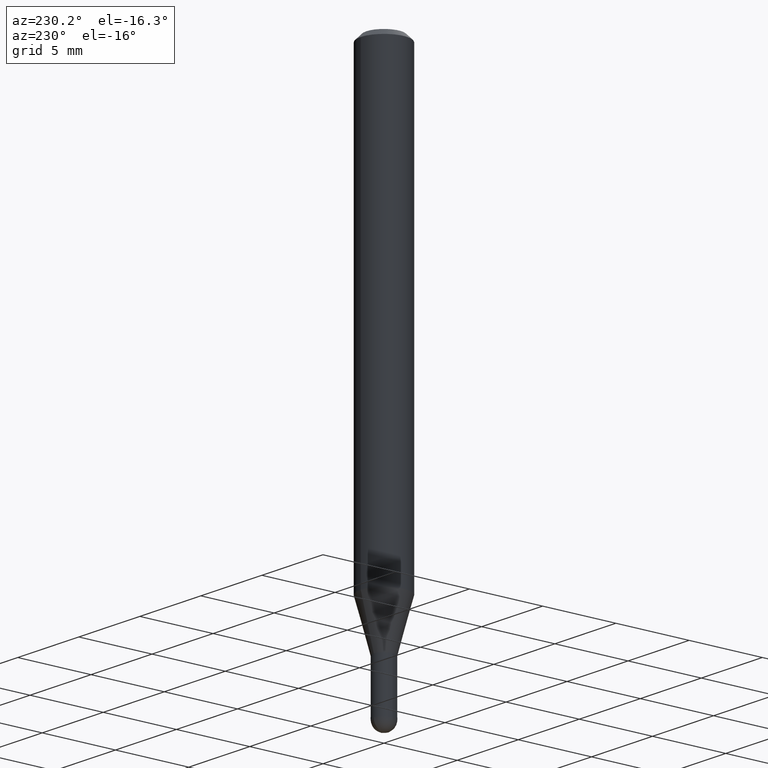
[diagram: clean part render]
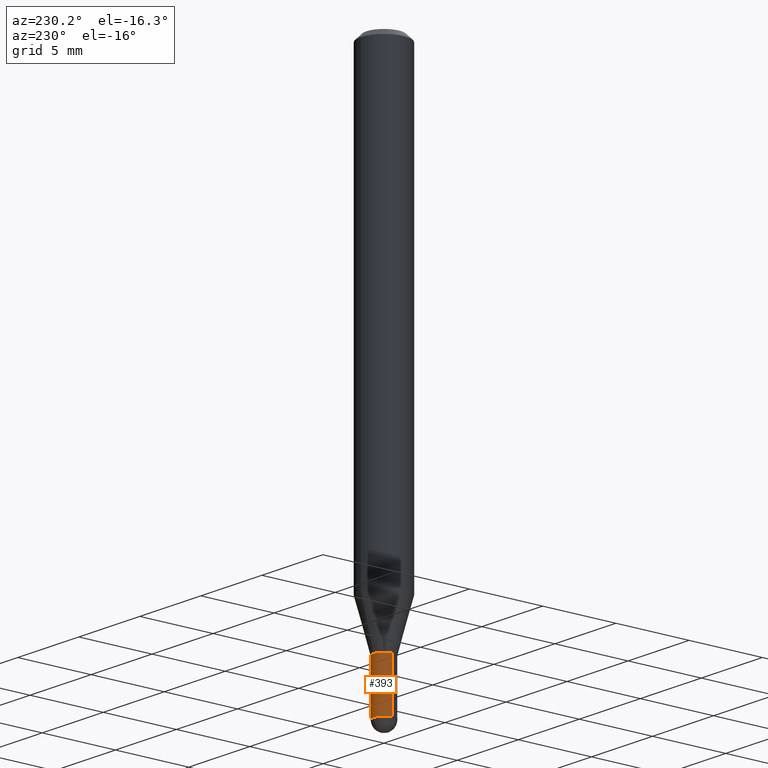
[diagram: same view with one face highlighted and labeled with its STEP entity id]
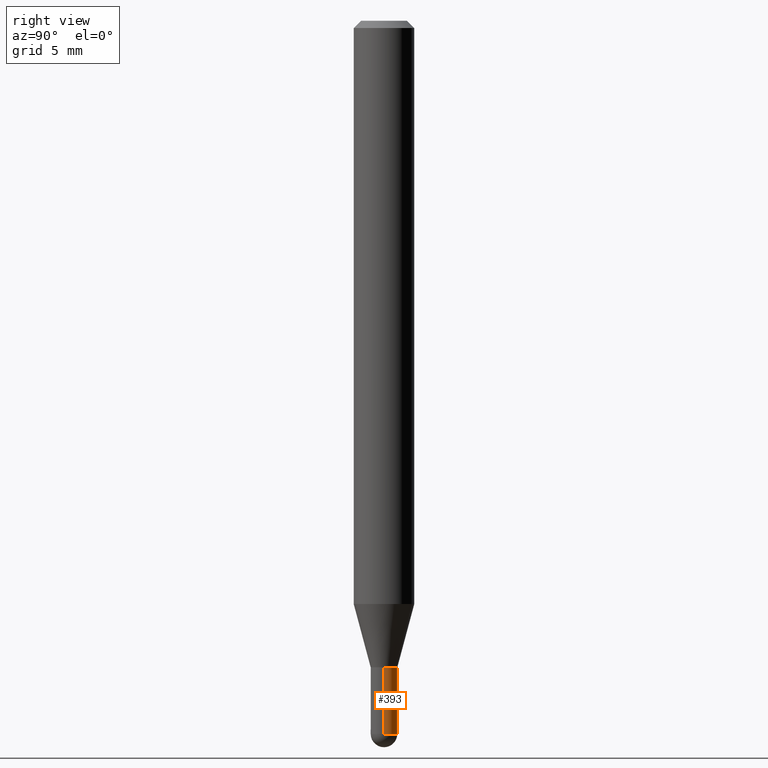
[diagram: same view with one face highlighted and labeled with its STEP entity id]
A machine part, auxiliary view. The second image highlights one B-rep face of the part: STEP entity #393.
A second angle (right view) of the same face is appended — the face is thin or edge-on in the first view.
In plain terms, the highlighted cylindrical surface (edge-blend (fillet) strip) has radius 0.6985 mm, axis along (-0, 0, 1).
Its self-contained STEP definition (entity closure, byte-faithful):
#5 = VERTEX_POINT ( 'NONE', #416 ) ;
#14 = AXIS2_PLACEMENT_3D ( 'NONE', #388, #344, #505 ) ;
#16 = DIRECTION ( 'NONE',  ( -2.445468806185136597E-29, 3.491481338843145583E-15, 1.000000000000000000 ) ) ;
#18 = VERTEX_POINT ( 'NONE', #313 ) ;
#22 = CARTESIAN_POINT ( 'NONE',  ( -0.02750000000000000708, -4.705767677067038393E-15, -1.472500000000000142 ) ) ;
#28 = ORIENTED_EDGE ( 'NONE', *, *, #316, .T. ) ;
#30 = CARTESIAN_POINT ( 'NONE',  ( -0.02750000000000000708, 1.953992523340276014E-16, -1.352707149820099356E-30 ) ) ;
#32 = LINE ( 'NONE', #30, #136 ) ;
#45 = VERTEX_POINT ( 'NONE', #311 ) ;
#61 = CIRCLE ( 'NONE', #145, 0.02750000000000000014 ) ;
#67 = ORIENTED_EDGE ( 'NONE', *, *, #386, .T. ) ;
#113 = AXIS2_PLACEMENT_3D ( 'NONE', #324, #290, #134 ) ;
#134 = DIRECTION ( 'NONE',  ( 1.000000000000000000, -6.982962677686265922E-15, 4.876176775795935232E-29 ) ) ;
#136 = VECTOR ( 'NONE', #190, 39.37007874015748143 ) ;
#143 = FACE_OUTER_BOUND ( 'NONE', #275, .T. ) ;
#145 = AXIS2_PLACEMENT_3D ( 'NONE', #242, #169, #432 ) ;
#169 = DIRECTION ( 'NONE',  ( -2.445468806185136597E-29, 3.491481338843145583E-15, 1.000000000000000000 ) ) ;
#177 = CARTESIAN_POINT ( 'NONE',  ( 0.02750000000000000708, -1.920314736363723691E-16, 1.340948613343882588E-30 ) ) ;
#180 = DIRECTION ( 'NONE',  ( 1.000000000000000000, -6.982962677686277755E-15, 0.000000000000000000 ) ) ;
#185 = ORIENTED_EDGE ( 'NONE', *, *, #471, .T. ) ;
#190 = DIRECTION ( 'NONE',  ( -2.445468806185136877E-29, 3.491481338843145188E-15, 1.000000000000000000 ) ) ;
#195 = EDGE_CURVE ( 'NONE', #5, #260, #365, .T. ) ;
#199 = AXIS2_PLACEMENT_3D ( 'NONE', #490, #16, #180 ) ;
#213 = EDGE_CURVE ( 'NONE', #260, #18, #61, .T. ) ;
#241 = CIRCLE ( 'NONE', #14, 0.02750000000000000708 ) ;
#242 = CARTESIAN_POINT ( 'NONE',  ( 3.264700856257157760E-29, -4.661127587355599122E-15, -1.335000000000000187 ) ) ;
#244 = CARTESIAN_POINT ( 'NONE',  ( 0.02750000000000000014, -4.853159060991972403E-15, -1.335000000000000187 ) ) ;
#260 = VERTEX_POINT ( 'NONE', #244 ) ;
#261 = VERTEX_POINT ( 'NONE', #22 ) ;
#275 = EDGE_LOOP ( 'NONE', ( #67, #28, #336, #374, #185 ) ) ;
#290 = DIRECTION ( 'NONE',  ( -2.445468806185136597E-29, 3.491481338843145583E-15, 1.000000000000000000 ) ) ;
#294 = CYLINDRICAL_SURFACE ( 'NONE', #113, 0.02750000000000000708 ) ;
#295 = VECTOR ( 'NONE', #468, 39.37007874015748143 ) ;
#311 = CARTESIAN_POINT ( 'NONE',  ( 1.953992523340633713E-16, 0.02749999999999484107, -1.472500000000000142 ) ) ;
#313 = CARTESIAN_POINT ( 'NONE',  ( -0.02750000000000000014, -4.705767677067038393E-15, -1.335000000000000187 ) ) ;
#316 = EDGE_CURVE ( 'NONE', #261, #18, #32, .T. ) ;
#324 = CARTESIAN_POINT ( 'NONE',  ( 0.000000000000000000, 0.000000000000000000, 0.000000000000000000 ) ) ;
#336 = ORIENTED_EDGE ( 'NONE', *, *, #213, .F. ) ;
#344 = DIRECTION ( 'NONE',  ( -2.445468806185136597E-29, 3.491481338843145583E-15, 1.000000000000000000 ) ) ;
#365 = LINE ( 'NONE', #177, #295 ) ;
#374 = ORIENTED_EDGE ( 'NONE', *, *, #195, .F. ) ;
#386 = EDGE_CURVE ( 'NONE', #45, #261, #509, .T. ) ;
#388 = CARTESIAN_POINT ( 'NONE',  ( 3.600952817107613706E-29, -5.141206271446532325E-15, -1.472500000000000142 ) ) ;
#393 = ADVANCED_FACE ( 'NONE', ( #143 ), #294, .T. ) ;
#416 = CARTESIAN_POINT ( 'NONE',  ( 0.02750000000000000708, -5.093198403037438216E-15, -1.472500000000000142 ) ) ;
#432 = DIRECTION ( 'NONE',  ( 1.000000000000000000, -6.982962677686279332E-15, 0.000000000000000000 ) ) ;
#468 = DIRECTION ( 'NONE',  ( -2.445468806185136877E-29, 3.491481338843145188E-15, 1.000000000000000000 ) ) ;
#471 = EDGE_CURVE ( 'NONE', #5, #45, #241, .T. ) ;
#490 = CARTESIAN_POINT ( 'NONE',  ( 3.600952817107613706E-29, -5.141206271446532325E-15, -1.472500000000000142 ) ) ;
#505 = DIRECTION ( 'NONE',  ( 1.000000000000000000, -6.982962677686277755E-15, 0.000000000000000000 ) ) ;
#509 = CIRCLE ( 'NONE', #199, 0.02750000000000000708 ) ;